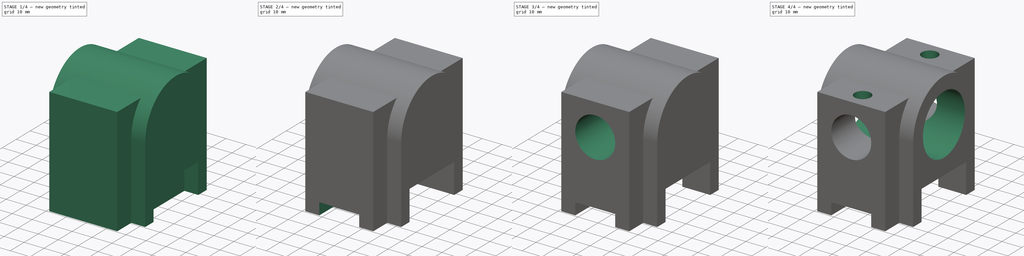
[diagram: build sequence overview — one tinted view per stage of 4, left to right]
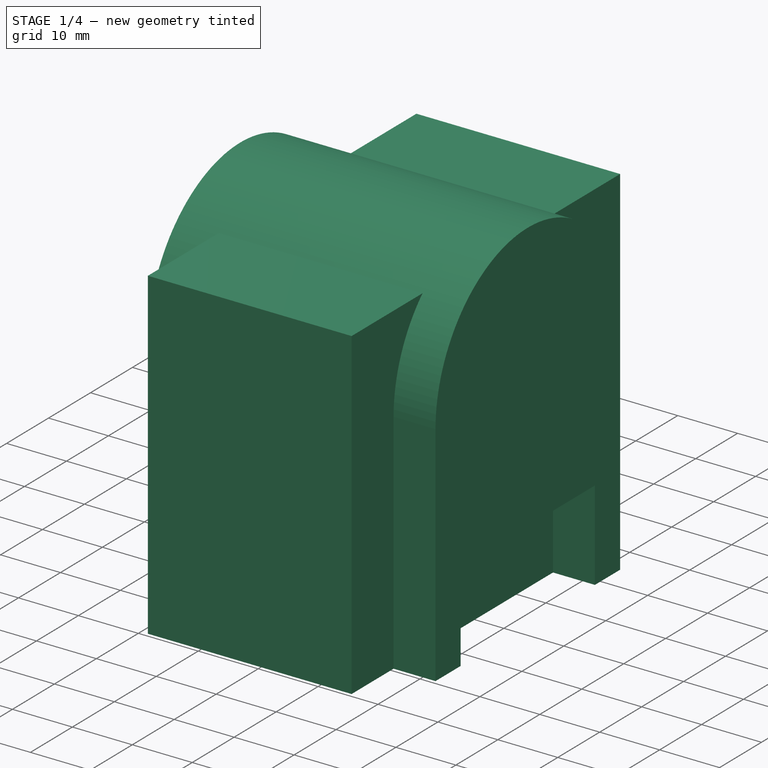
[diagram: stage 1 of 4 — iso view after this stage's code; geometry added in this stage tinted green]
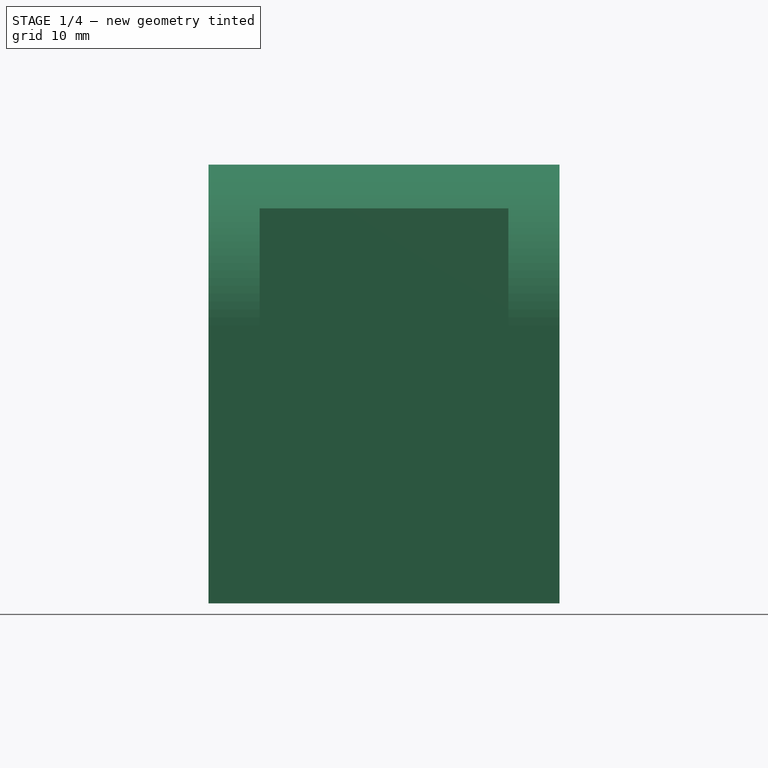
[diagram: stage 1 of 4 — front view after this stage's code; geometry added in this stage tinted green]
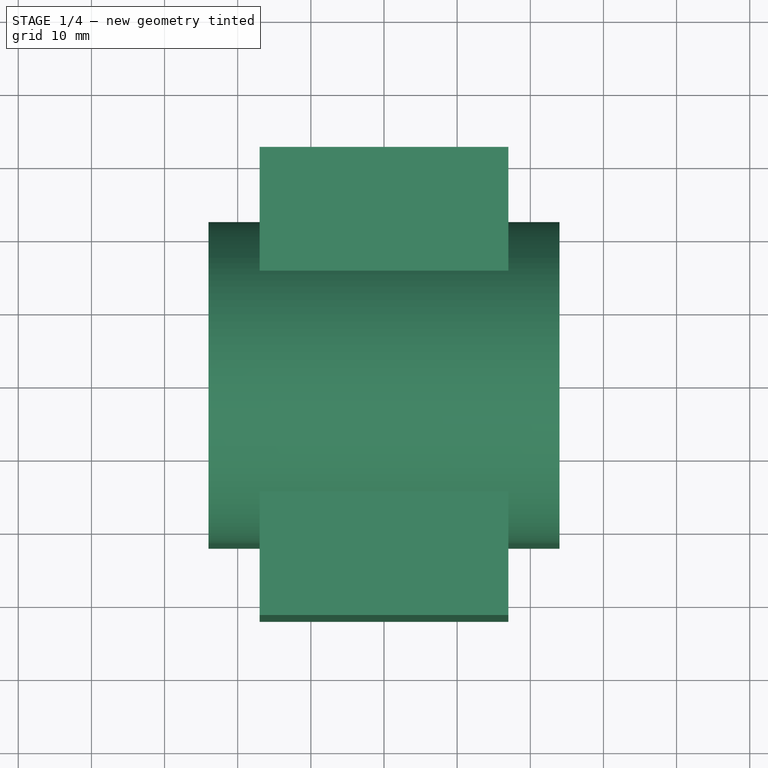
[diagram: stage 1 of 4 — top view after this stage's code; geometry added in this stage tinted green]
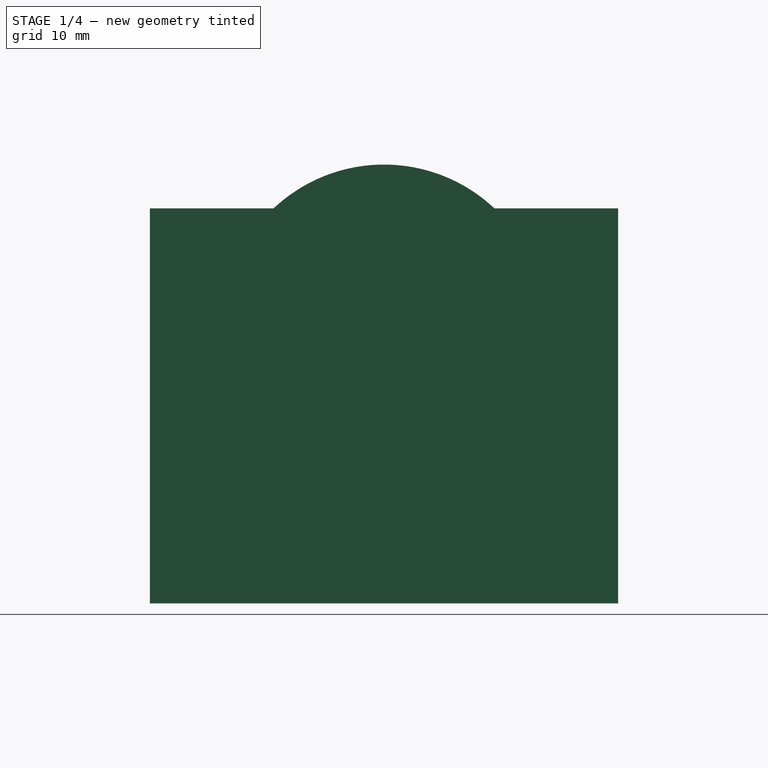
[diagram: stage 1 of 4 — right view after this stage's code; geometry added in this stage tinted green]
FCSTD DOCUMENT  (FreeCAD 0.16R)
Label: Fig 4.13 Final
License: All rights reserved
LicenseURL: http://en.wikipedia.org/wiki/All_rights_reserved
objects: Sketcher::SketchObject×8, PartDesign::Pocket×6, PartDesign::Pad×2, Part::MultiFuse×1
note: 25 computed .brp shape members not serialized (recipe doc carries the construction recipe); baked Part::Feature solids carry a one-line shape summary decoded from their .brp

FEATURE [Sketcher::SketchObject] Sketch
  Placement = pos=(0,0,0) rot=(0.57735,0.57735,0.57735;2.0944rad)
  sketch-geometry (4):
    g0: LineSegment StartX=-32 StartY=0 StartZ=0 EndX=32 EndY=0 EndZ=0
    g1: LineSegment StartX=32 StartY=0 StartZ=0 EndX=32 EndY=54 EndZ=0
    g2: LineSegment StartX=32 StartY=54 StartZ=0 EndX=-32 EndY=54 EndZ=0
    g3: LineSegment StartX=-32 StartY=54 StartZ=0 EndX=-32 EndY=0 EndZ=0
  constraints (12):
    c: Coincident(g0,g1)
    c: Coincident(g1,g2)
    c: Coincident(g2,g3)
    c: Coincident(g3,g0)
    c: Horizontal(g0)
    c: Horizontal(g2)
    c: Vertical(g1)
    c: Vertical(g3)
    c: PointOnObject(g0,g-1)
    c: DistanceY(g3,g3) = 54
    c: DistanceX(g2,g2) = 64
    c: Symmetric(g0,g0,g-2)
FEATURE [PartDesign::Pad] Pad
  Length = 34
  Length2 = 100
  Midplane = true
  Placement = pos=(0,0,0) rot=(0.57735,0.57735,0.57735;2.0944rad)
  Sketch = -> Sketch
  Type = 0
FEATURE [Sketcher::SketchObject] Sketch004
  Placement = pos=(0,0,0) rot=(0.57735,0.57735,0.57735;2.0944rad)
  sketch-geometry (8):
    g0: LineSegment StartX=-16 StartY=0 StartZ=0 EndX=-16 EndY=15 EndZ=0
    g1: LineSegment StartX=-16 StartY=15 StartZ=0 EndX=16 EndY=15 EndZ=0
    g2: LineSegment StartX=16 StartY=15 StartZ=0 EndX=16 EndY=0 EndZ=0
    g3: LineSegment StartX=16 StartY=0 StartZ=0 EndX=22 EndY=0 EndZ=0
    g4: LineSegment StartX=22 StartY=0 StartZ=0 EndX=22 EndY=38 EndZ=0
    g5: LineSegment StartX=-16 StartY=0 StartZ=0 EndX=-22 EndY=0 EndZ=0
    g6: LineSegment StartX=-22 StartY=0 StartZ=0 EndX=-22 EndY=38 EndZ=0
    g7: ArcOfCircle CenterX=0 CenterY=38.0001 CenterZ=0 NormalX=0 NormalY=0 NormalZ=1 Radius=22 StartAngle=6.28318 EndAngle=9.42478
  constraints (23):
    c: PointOnObject(g0,g-1)
    c: Vertical(g0)
    c: Coincident(g0,g1)
    c: Horizontal(g1)
    c: Coincident(g1,g2)
    c: Coincident(g2,g3)
    c: PointOnObject(g3,g-1)
    c: Coincident(g3,g4)
    c: Vertical(g4)
    c: Vertical(g2)
    c: Coincident(g0,g5)
    c: Coincident(g5,g6)
    c: Vertical(g6)
    c: DistanceY(g4,g4) = 38
    c: Equal(g4,g6)
    c: DistanceX(g1,g1) = 32
    c: DistanceX(g5,g3) = 44
    c: Coincident(g7,g4)
    c: Coincident(g6,g7)
    c: Symmetric(g5,g3,g-2)
    c: Symmetric(g2,g0,g-2)
    c: DistanceY(g0,g0) = 15
    c: Radius(g7) = 22
FEATURE [PartDesign::Pad] Pad001
  Length = 48
  Length2 = 100
  Midplane = true
  Placement = pos=(0,0,0) rot=(0.57735,0.57735,0.57735;2.0944rad)
  Sketch = -> Sketch004
  Type = 0
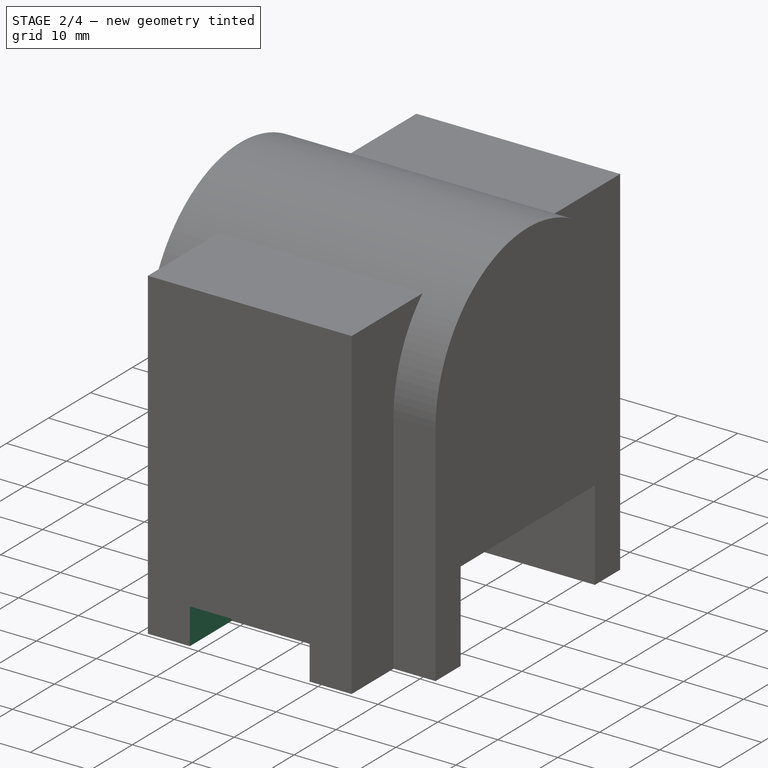
[diagram: stage 2 of 4 — iso view after this stage's code; geometry added in this stage tinted green]
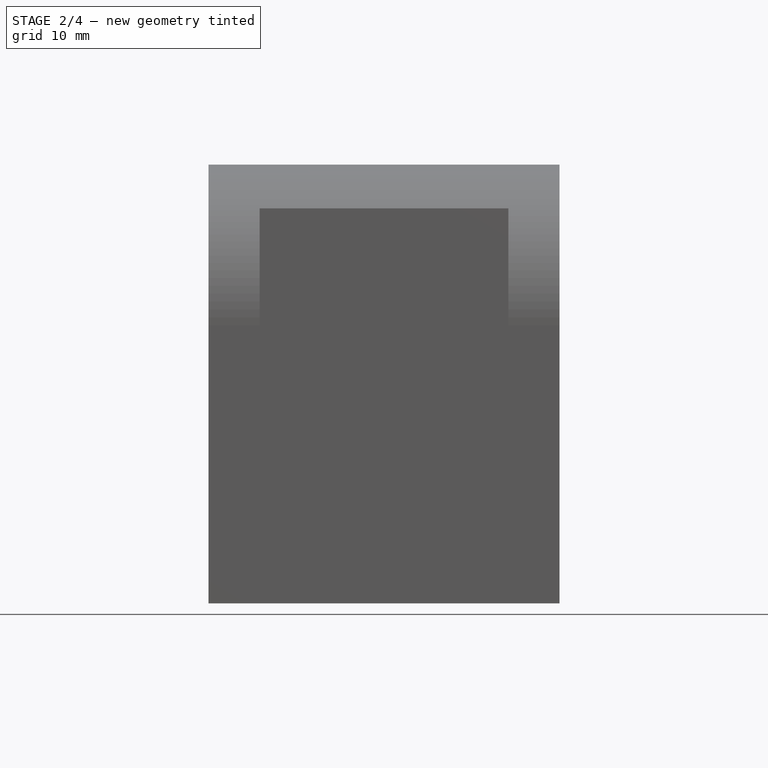
[diagram: stage 2 of 4 — front view after this stage's code; geometry added in this stage tinted green]
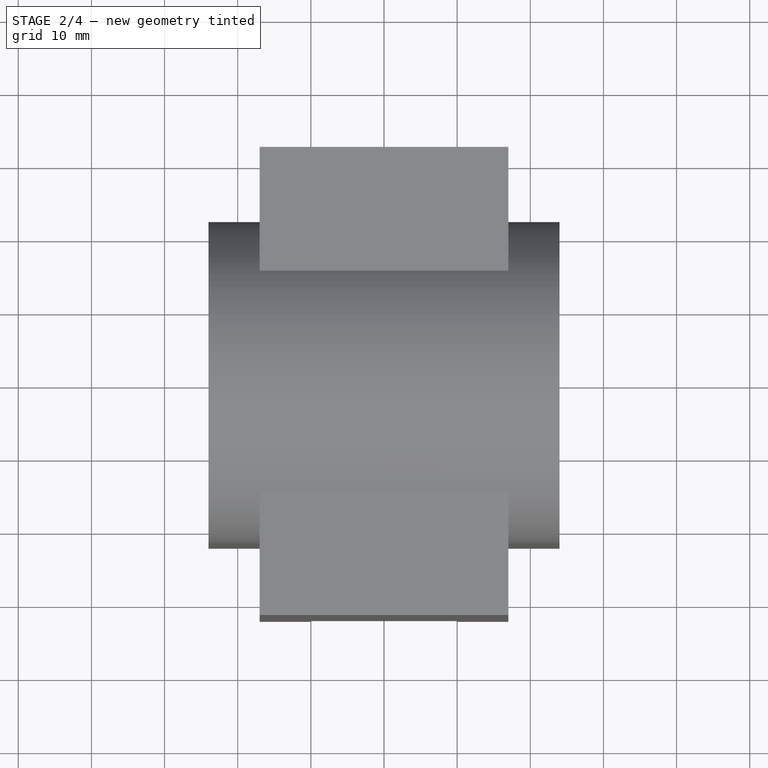
[diagram: stage 2 of 4 — top view after this stage's code; geometry added in this stage tinted green]
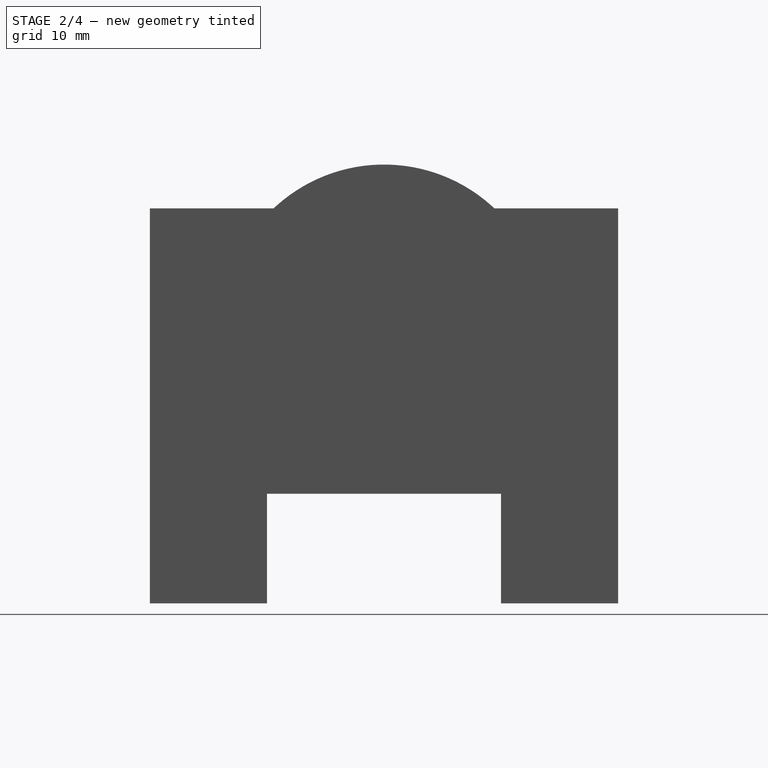
[diagram: stage 2 of 4 — right view after this stage's code; geometry added in this stage tinted green]
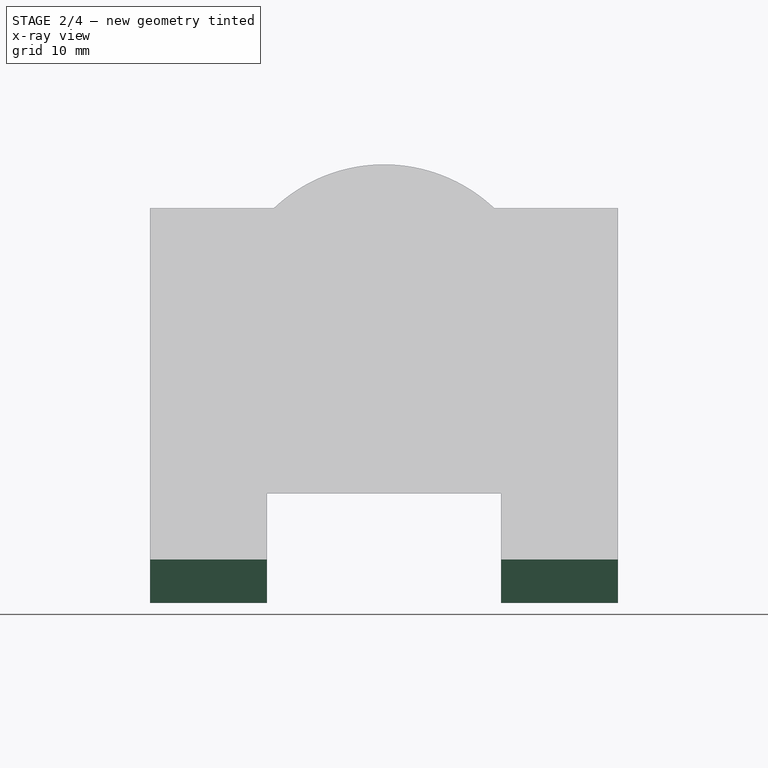
[diagram: stage 2 of 4 — x-ray composite at the right view; earlier geometry ghosted, this stage's added geometry solid]
FEATURE [Sketcher::SketchObject] Sketch001
  ExternalGeometry = -> [Pad]
  Placement = pos=(0,-32,0) rot=(0.57735,0.57735,-0.57735;2.0944rad)
  Support = -> Pad [Face4]
  sketch-geometry (4):
    g0: LineSegment StartX=6.37122 StartY=10 StartZ=0 EndX=-6 EndY=10 EndZ=0
    g1: LineSegment StartX=-6 StartY=10 StartZ=0 EndX=-6 EndY=-10 EndZ=0
    g2: LineSegment StartX=-6 StartY=-10 StartZ=0 EndX=6.37122 EndY=-10 EndZ=0
    g3: LineSegment StartX=6.37122 StartY=-10 StartZ=0 EndX=6.37122 EndY=10 EndZ=0
  constraints (11):
    c: Coincident(g0,g1)
    c: Coincident(g1,g2)
    c: Coincident(g2,g3)
    c: Coincident(g3,g0)
    c: Horizontal(g0)
    c: Horizontal(g2)
    c: Vertical(g1)
    c: Vertical(g3)
    c: DistanceY(g3,g3) = 20
    c: DistanceX(g1,g-4) = 6
    c: DistanceY(g0,g-3) = 7
FEATURE [PartDesign::Pocket] Pocket
  Length = 5
  Placement = pos=(0,0,0) rot=(0.57735,0.57735,0.57735;2.0944rad)
  Sketch = -> Sketch001
  Type = 1
FEATURE [Sketcher::SketchObject] Sketch002
  ExternalGeometry = -> [Pocket]
  Placement = pos=(17,0,0) rot=(0.57735,0.57735,0.57735;2.0944rad)
  Support = -> Pocket [Face7]
  sketch-geometry (4):
    g0: LineSegment StartX=-16 StartY=-8.71851 StartZ=0 EndX=16 EndY=-8.71851 EndZ=0
    g1: LineSegment StartX=16 StartY=-8.71851 StartZ=0 EndX=16 EndY=15 EndZ=0
    g2: LineSegment StartX=16 StartY=15 StartZ=0 EndX=-16 EndY=15 EndZ=0
    g3: LineSegment StartX=-16 StartY=15 StartZ=0 EndX=-16 EndY=-8.71851 EndZ=0
  constraints (11):
    c: Coincident(g0,g1)
    c: Coincident(g1,g2)
    c: Coincident(g2,g3)
    c: Coincident(g3,g0)
    c: Horizontal(g0)
    c: Horizontal(g2)
    c: Vertical(g1)
    c: Vertical(g3)
    c: DistanceY(g-3,g1) = 15
    c: DistanceX(g0,g0) = 32
    c: Symmetric(g0,g0,g-2)
FEATURE [PartDesign::Pocket] Pocket001
  Length = 5
  Placement = pos=(0,0,0) rot=(0.57735,0.57735,0.57735;2.0944rad)
  Sketch = -> Sketch002
  Type = 1
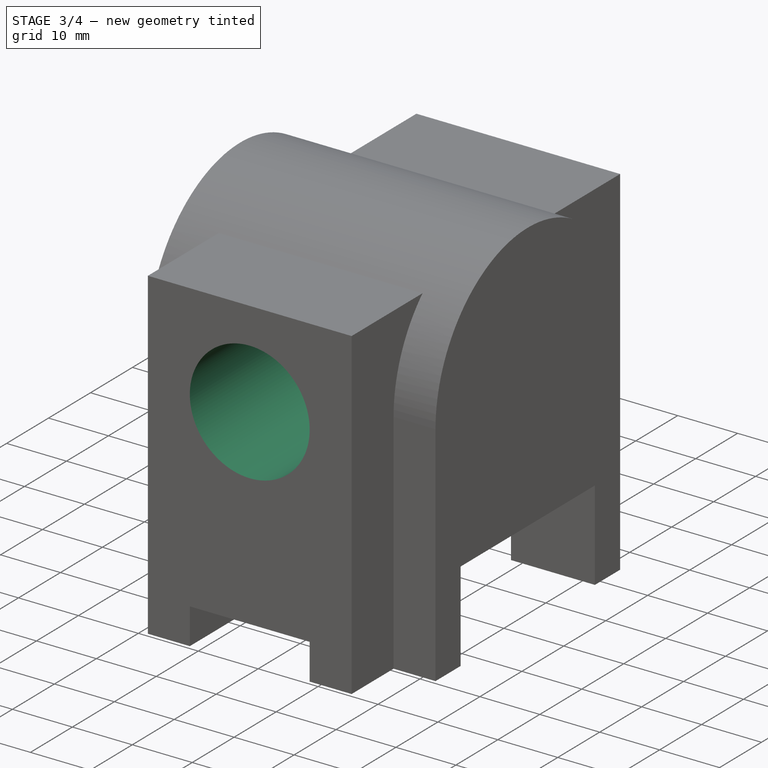
[diagram: stage 3 of 4 — iso view after this stage's code; geometry added in this stage tinted green]
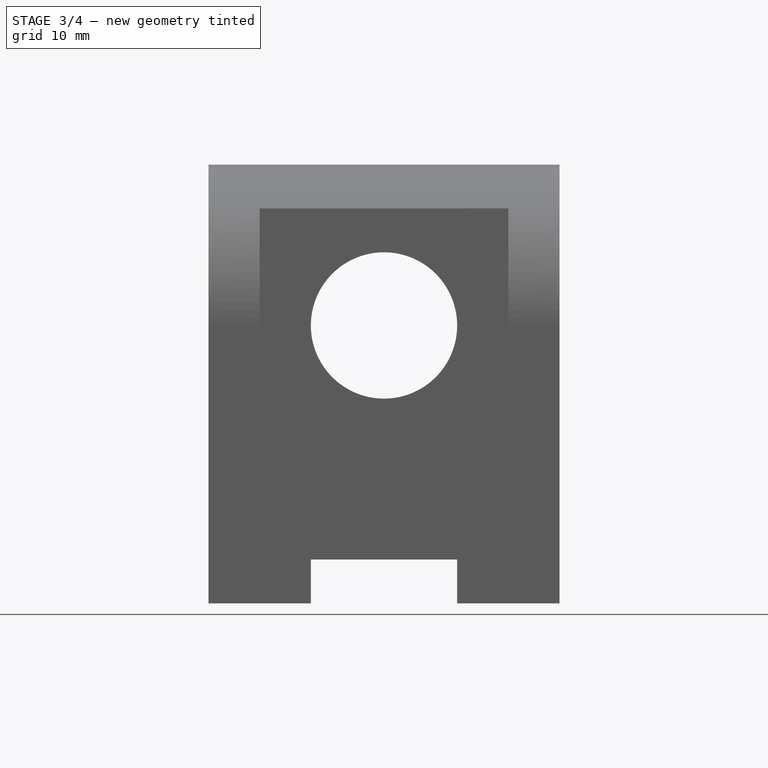
[diagram: stage 3 of 4 — front view after this stage's code; geometry added in this stage tinted green]
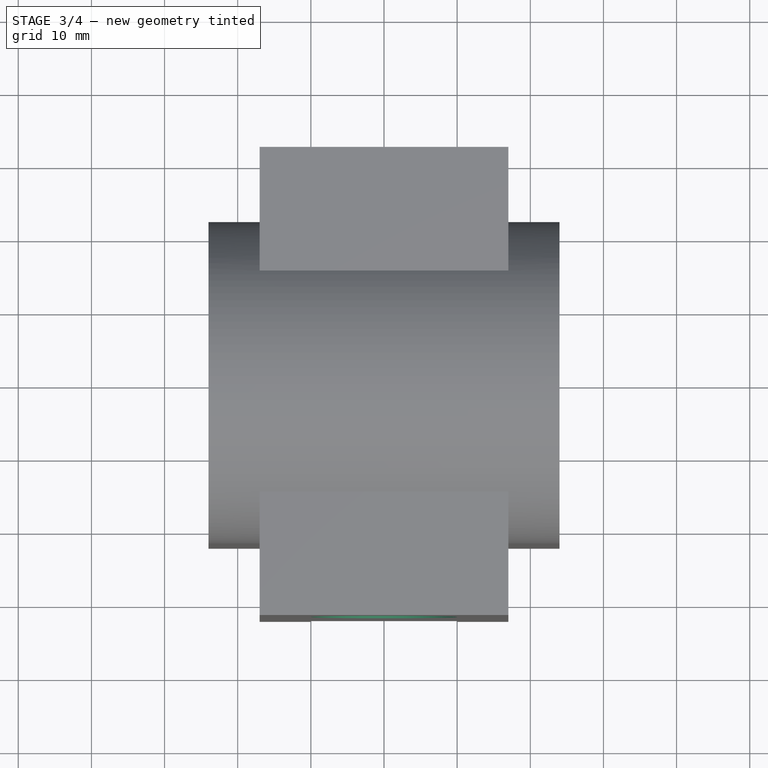
[diagram: stage 3 of 4 — top view after this stage's code; geometry added in this stage tinted green]
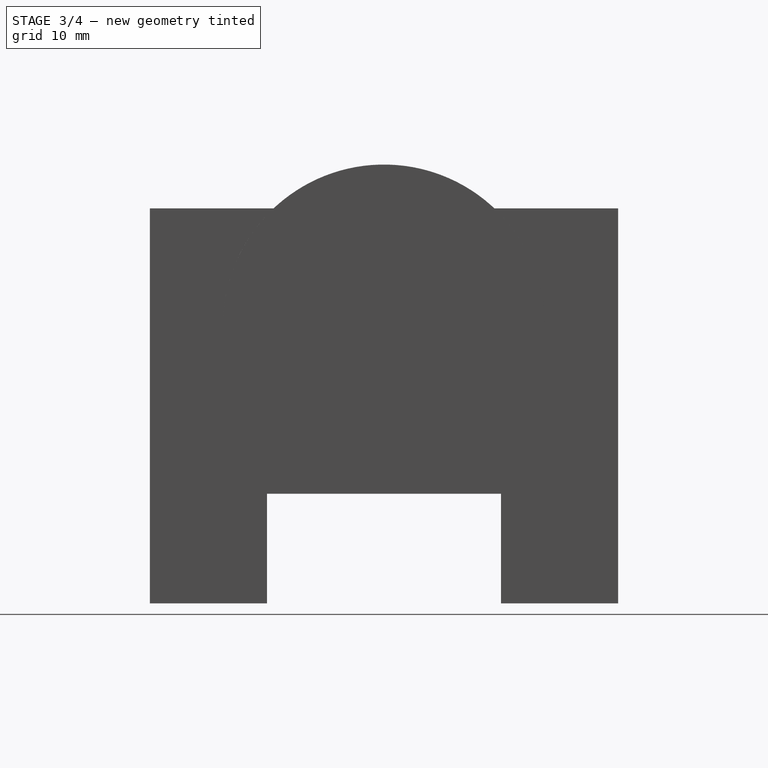
[diagram: stage 3 of 4 — right view after this stage's code; geometry added in this stage tinted green]
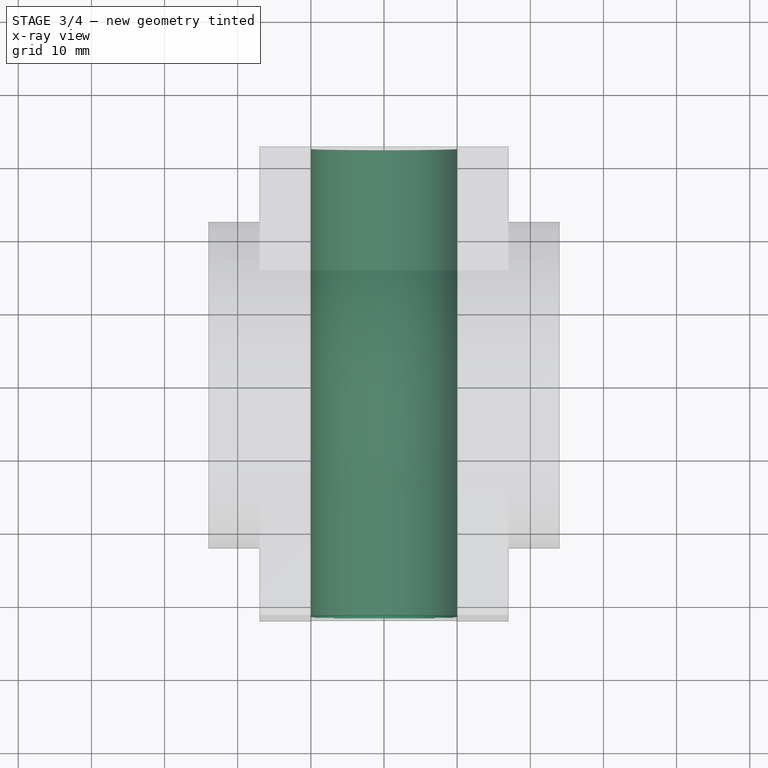
[diagram: stage 3 of 4 — x-ray composite at the top view; earlier geometry ghosted, this stage's added geometry solid]
FEATURE [Part::MultiFuse] Fusion
  Shapes = -> [Pad001,Pocket001]
FEATURE [Sketcher::SketchObject] Sketch005
  Placement = pos=(0,-32,0) rot=(1,0,0;1.5708rad)
  Support = -> Fusion [Face15]
  sketch-geometry (1):
    g0: Circle CenterX=0 CenterY=38 CenterZ=0 NormalX=0 NormalY=0 NormalZ=1 Radius=10
  constraints (3):
    c: PointOnObject(g0,g-2)
    c: Radius(g0) = 10
    c: DistanceY(g-1,g0) = 38
FEATURE [PartDesign::Pocket] Pocket002
  Length = 5
  Sketch = -> Sketch005
  Type = 1
FEATURE [Sketcher::SketchObject] Sketch006
  ExternalGeometry = -> [Pocket002]
  Placement = pos=(0,-22,0) rot=(1,0,0;1.5708rad)
  Support = -> Pocket002 [Face25]
  sketch-geometry (4):
    g0: LineSegment StartX=-10 StartY=-8.23518 StartZ=0 EndX=10 EndY=-8.23518 EndZ=0
    g1: LineSegment StartX=10 StartY=-8.23518 StartZ=0 EndX=10 EndY=6 EndZ=0
    g2: LineSegment StartX=10 StartY=6 StartZ=0 EndX=-10 EndY=6 EndZ=0
    g3: LineSegment StartX=-10 StartY=6 StartZ=0 EndX=-10 EndY=-8.23518 EndZ=0
  constraints (10):
    c: Coincident(g0,g1)
    c: Coincident(g1,g2)
    c: Coincident(g2,g3)
    c: Coincident(g3,g0)
    c: Horizontal(g0)
    c: Horizontal(g2)
    c: Vertical(g1)
    c: Vertical(g3)
    c: Coincident(g1,g-3)
    c: Coincident(g2,g-3)
FEATURE [PartDesign::Pocket] Pocket003
  Length = 5
  Sketch = -> Sketch006
  Type = 1
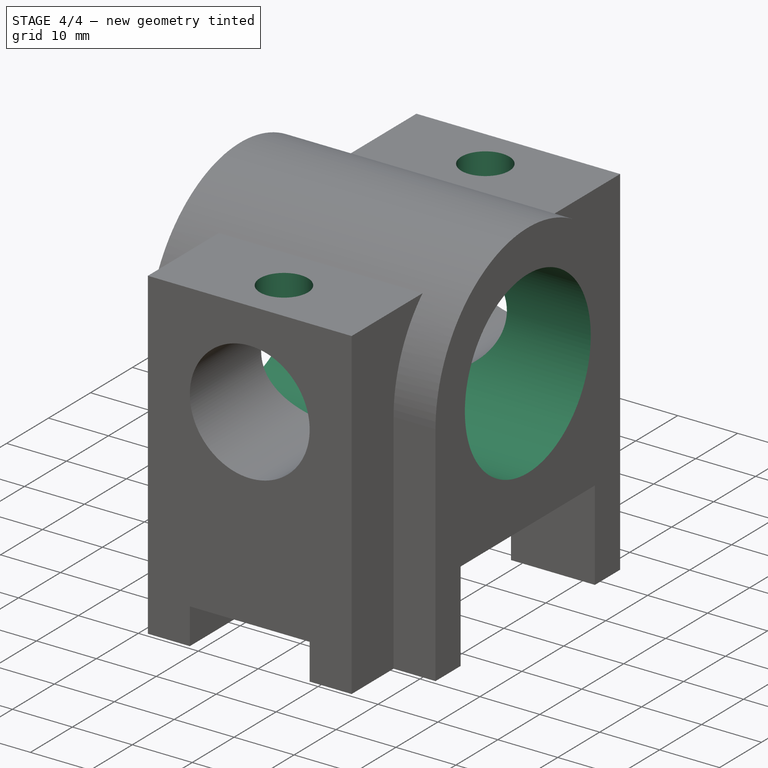
[diagram: stage 4 of 4 — iso view after this stage's code; geometry added in this stage tinted green]
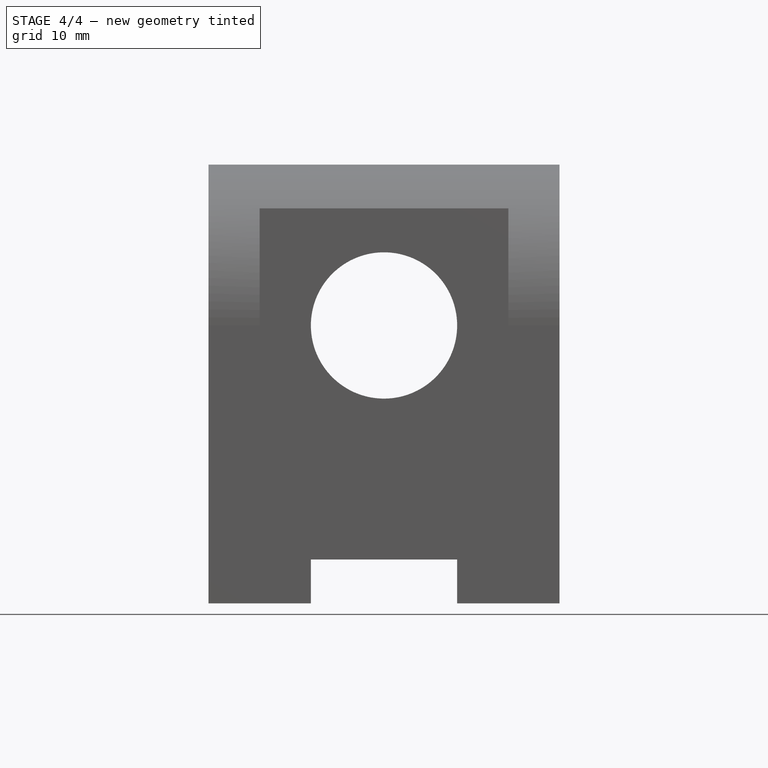
[diagram: stage 4 of 4 — front view after this stage's code; geometry added in this stage tinted green]
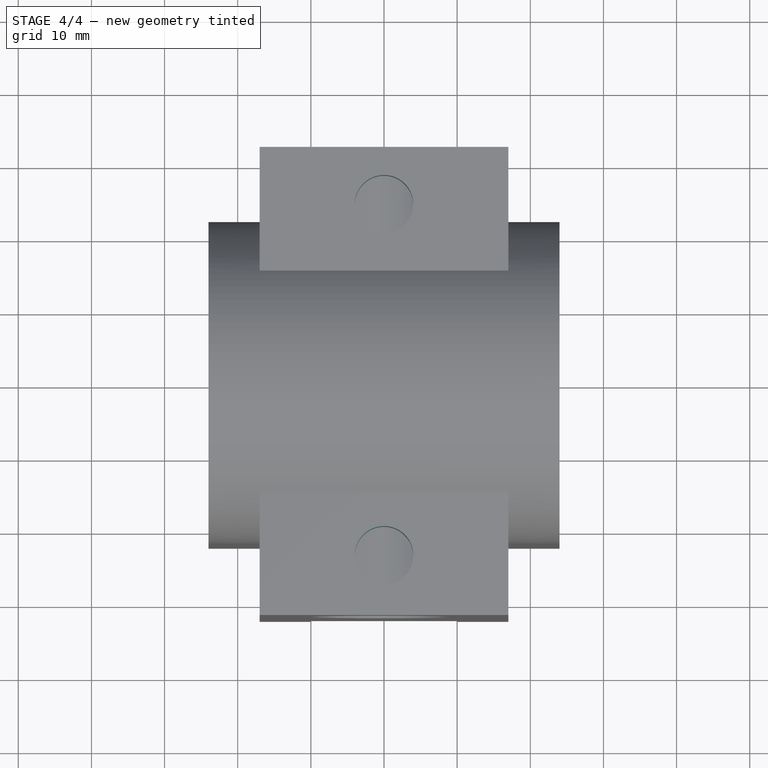
[diagram: stage 4 of 4 — top view after this stage's code; geometry added in this stage tinted green]
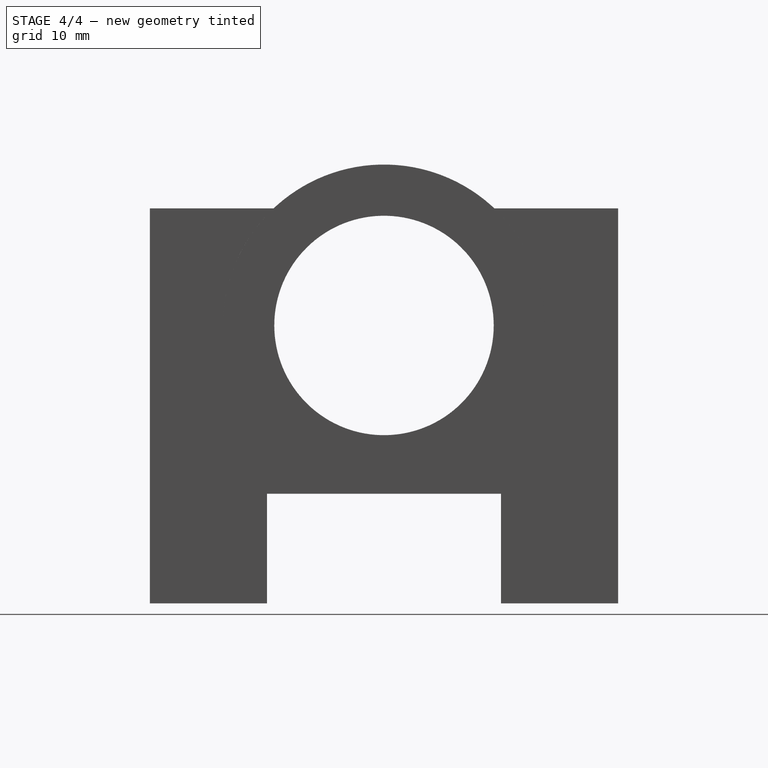
[diagram: stage 4 of 4 — right view after this stage's code; geometry added in this stage tinted green]
FEATURE [Sketcher::SketchObject] Sketch007
  Placement = pos=(24,0,0) rot=(0.57735,0.57735,0.57735;2.0944rad)
  Support = -> Pocket003 [Face10]
  sketch-geometry (1):
    g0: Circle CenterX=0 CenterY=38 CenterZ=0 NormalX=0 NormalY=0 NormalZ=1 Radius=15
  constraints (3):
    c: PointOnObject(g0,g-2)
    c: DistanceY(g-1,g0) = 38
    c: Radius(g0) = 15
FEATURE [PartDesign::Pocket] Pocket004
  Length = 5
  Sketch = -> Sketch007
  Type = 1
FEATURE [Sketcher::SketchObject] Sketch008
  Placement = pos=(0,0,54) rot=(0,0,1;0rad)
  Support = -> Pocket004 [Face22]
  sketch-geometry (2):
    g0: Circle CenterX=0 CenterY=-23.8486 CenterZ=0 NormalX=0 NormalY=0 NormalZ=1 Radius=4
    g1: Circle CenterX=0 CenterY=24.1514 CenterZ=0 NormalX=0 NormalY=0 NormalZ=1 Radius=4
  constraints (4):
    c: PointOnObject(g0,g-2)
    c: Radius(g0) = 4
    c: Radius(g1) = 4
    c: DistanceY(g0,g1) = 48
FEATURE [PartDesign::Pocket] Pocket005
  Length = 10
  Sketch = -> Sketch008
  Type = 0
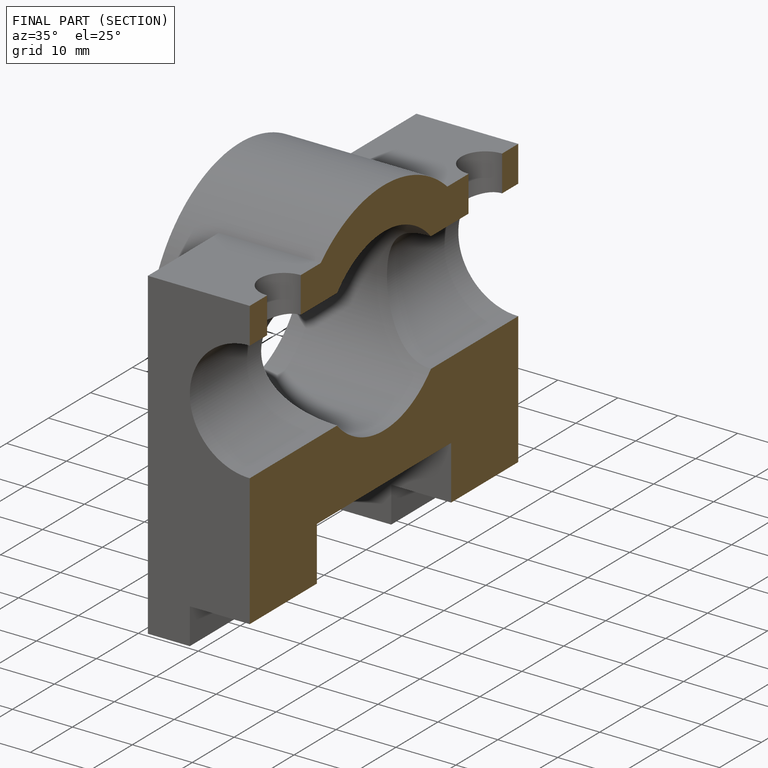
[diagram: finished part — half-section view (interior)]
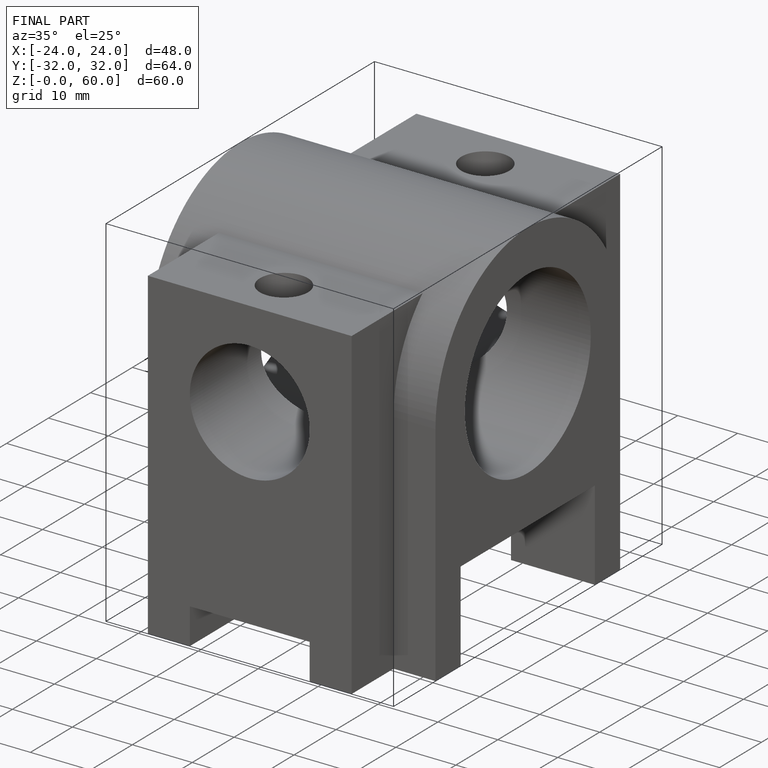
[diagram: finished part — iso view with bounding-box wireframe]
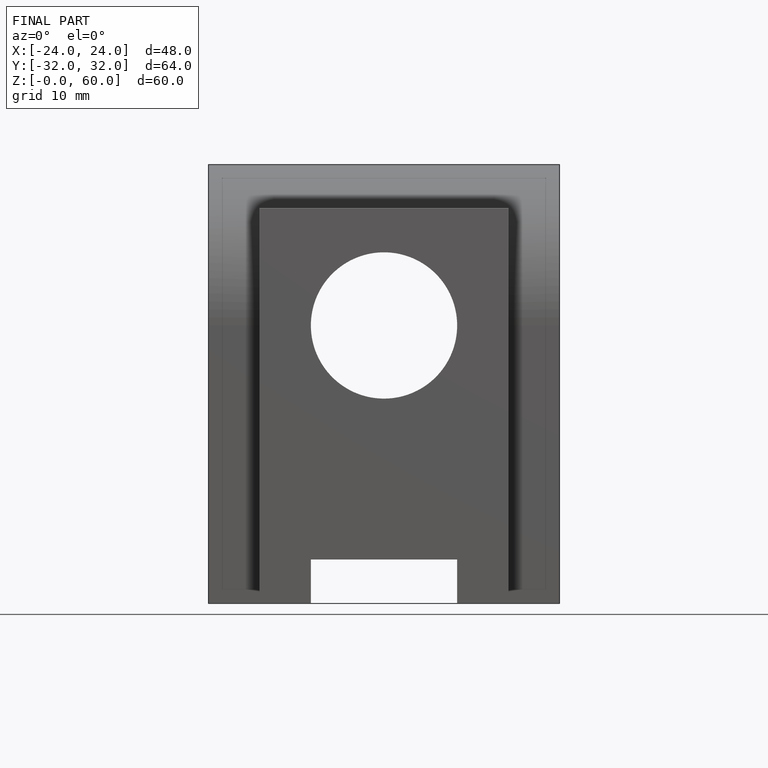
[diagram: finished part — front view with bounding-box wireframe]
